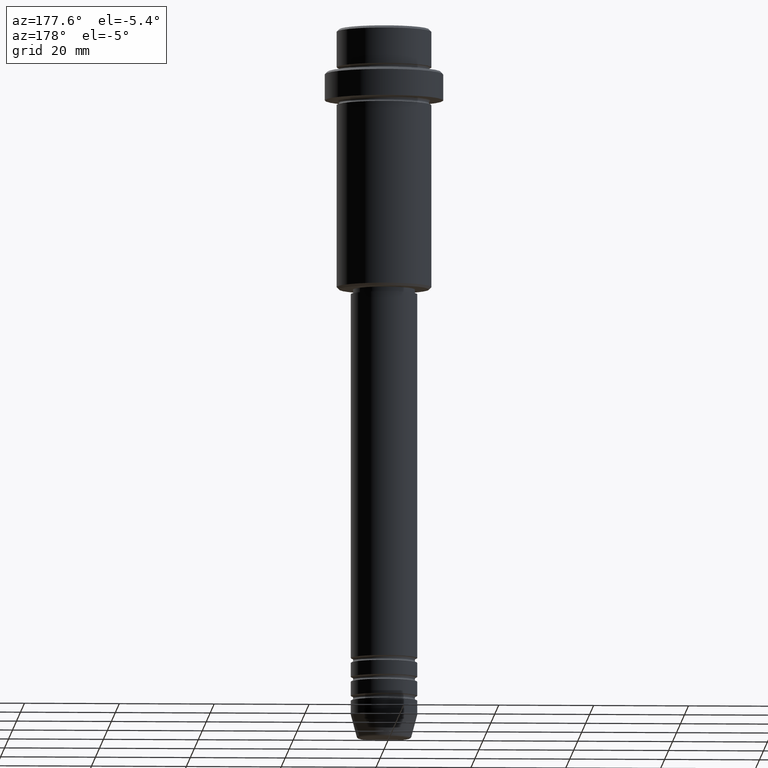
[diagram: clean part render]
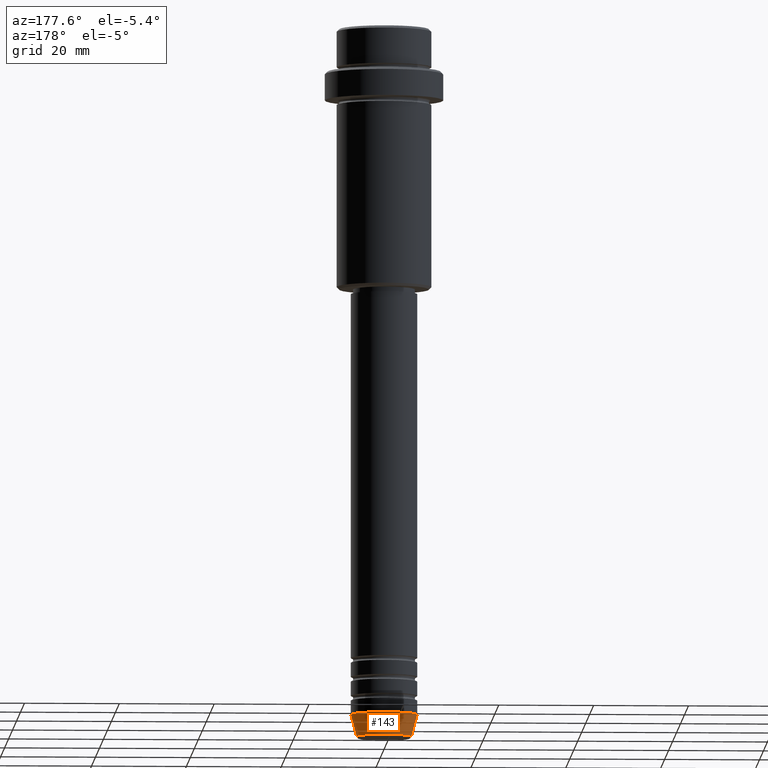
[diagram: same view with one face highlighted and labeled with its STEP entity id]
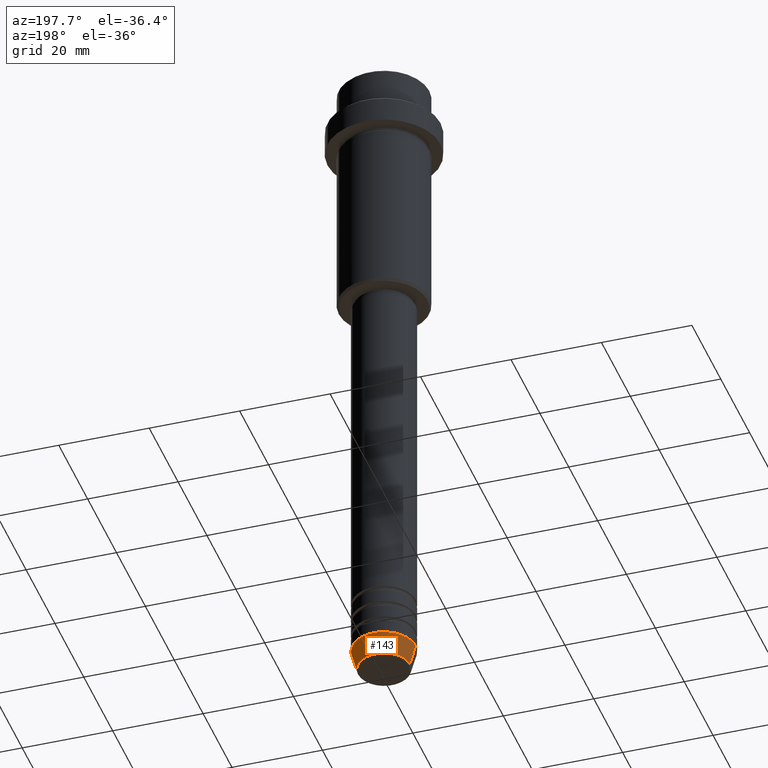
[diagram: same view with one face highlighted and labeled with its STEP entity id]
A machine part, auxiliary view. The second image highlights one B-rep face of the part: STEP entity #143.
A second angle (auxiliary view) of the same face is appended — the face is thin or edge-on in the first view.
In plain terms, the highlighted conical surface has half-angle 15 deg.
Its self-contained STEP definition (entity closure, byte-faithful):
#8 = LINE ( 'NONE', #443, #1083 ) ;
#84 = AXIS2_PLACEMENT_3D ( 'NONE', #1089, #1324, #1299 ) ;
#143 = ADVANCED_FACE ( 'NONE', ( #227 ), #1247, .T. ) ;
#151 = EDGE_CURVE ( 'NONE', #1402, #928, #955, .T. ) ;
#155 = ORIENTED_EDGE ( 'NONE', *, *, #151, .T. ) ;
#169 = CARTESIAN_POINT ( 'NONE',  ( -7.000000000000000000, 8.572527594031473190E-16, -145.0000000000000000 ) ) ;
#227 = FACE_OUTER_BOUND ( 'NONE', #466, .T. ) ;
#238 = VERTEX_POINT ( 'NONE', #725 ) ;
#262 = CARTESIAN_POINT ( 'NONE',  ( 5.759553456999437770, 0.000000000000000000, -149.6294095225512137 ) ) ;
#393 = AXIS2_PLACEMENT_3D ( 'NONE', #583, #477, #920 ) ;
#443 = CARTESIAN_POINT ( 'NONE',  ( -7.000000000000000000, 8.572527594031473190E-16, -145.0000000000000000 ) ) ;
#463 = CARTESIAN_POINT ( 'NONE',  ( 0.000000000000000000, 0.000000000000000000, -145.0000000000000000 ) ) ;
#466 = EDGE_LOOP ( 'NONE', ( #155, #566, #1279, #1108 ) ) ;
#477 = DIRECTION ( 'NONE',  ( -0.000000000000000000, -0.000000000000000000, 1.000000000000000000 ) ) ;
#494 = LINE ( 'NONE', #939, #1107 ) ;
#565 = DIRECTION ( 'NONE',  ( -0.2588190451025227379, 3.169619151431788361E-17, 0.9659258262890676461 ) ) ;
#566 = ORIENTED_EDGE ( 'NONE', *, *, #1245, .T. ) ;
#583 = CARTESIAN_POINT ( 'NONE',  ( 0.000000000000000000, 0.000000000000000000, -149.6294095225512137 ) ) ;
#601 = AXIS2_PLACEMENT_3D ( 'NONE', #463, #1360, #796 ) ;
#725 = CARTESIAN_POINT ( 'NONE',  ( 7.000000000000000000, 0.000000000000000000, -145.0000000000000000 ) ) ;
#796 = DIRECTION ( 'NONE',  ( 1.000000000000000000, 0.000000000000000000, 0.000000000000000000 ) ) ;
#872 = VERTEX_POINT ( 'NONE', #169 ) ;
#920 = DIRECTION ( 'NONE',  ( 1.000000000000000000, 0.000000000000000000, 0.000000000000000000 ) ) ;
#928 = VERTEX_POINT ( 'NONE', #1355 ) ;
#939 = CARTESIAN_POINT ( 'NONE',  ( 7.000000000000000000, 0.000000000000000000, -145.0000000000000000 ) ) ;
#953 = EDGE_CURVE ( 'NONE', #1402, #238, #494, .T. ) ;
#955 = CIRCLE ( 'NONE', #393, 5.759553456999437770 ) ;
#1083 = VECTOR ( 'NONE', #565, 1000.000000000000114 ) ;
#1089 = CARTESIAN_POINT ( 'NONE',  ( 0.000000000000000000, 0.000000000000000000, -145.0000000000000000 ) ) ;
#1107 = VECTOR ( 'NONE', #1372, 1000.000000000000114 ) ;
#1108 = ORIENTED_EDGE ( 'NONE', *, *, #953, .F. ) ;
#1245 = EDGE_CURVE ( 'NONE', #928, #872, #8, .T. ) ;
#1247 = CONICAL_SURFACE ( 'NONE', #84, 7.000000000000000000, 0.2617993877991514617 ) ;
#1279 = ORIENTED_EDGE ( 'NONE', *, *, #1373, .F. ) ;
#1289 = CIRCLE ( 'NONE', #601, 7.000000000000000000 ) ;
#1299 = DIRECTION ( 'NONE',  ( 1.000000000000000000, 0.000000000000000000, 0.000000000000000000 ) ) ;
#1324 = DIRECTION ( 'NONE',  ( -0.000000000000000000, -0.000000000000000000, 1.000000000000000000 ) ) ;
#1355 = CARTESIAN_POINT ( 'NONE',  ( -5.759553456999437770, 7.812973149831953745E-16, -149.6294095225512137 ) ) ;
#1360 = DIRECTION ( 'NONE',  ( -0.000000000000000000, -0.000000000000000000, 1.000000000000000000 ) ) ;
#1372 = DIRECTION ( 'NONE',  ( 0.2588190451025227379, 0.000000000000000000, 0.9659258262890676461 ) ) ;
#1373 = EDGE_CURVE ( 'NONE', #238, #872, #1289, .T. ) ;
#1402 = VERTEX_POINT ( 'NONE', #262 ) ;